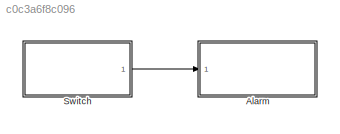
MODEL slx_c0c3a6f8c096
KIND model
CONFIG AbsTol = auto
CONFIG EnableMultiTasking = off
CONFIG FixedStep = auto
CONFIG MaxStep = auto
CONFIG MinStep = auto
CONFIG RelTol = 1e-3
CONFIG SampleTimeConstraint = Unconstrained
CONFIG Solver = FixedStepDiscrete
CONFIG SolverName = FixedStepDiscrete
CONFIG StartTime = 0.0
CONFIG StopTime = 10.0
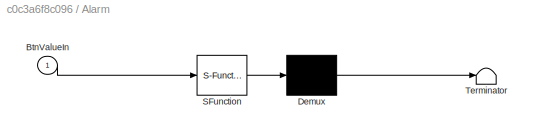
BLOCK [SubSystem] Alarm
  BlockKeywords = __PRM__SERIALIZED__DATA__:Stateflow Chart,Stateflow Diagram
  ErrorFcn = Stateflow.Translate.translate
  PermitHierarchicalResolution = ExplicitOnly
  Ports = [1]
  RequestExecContextInheritance = off
  SFBlockType = Chart
  TreatAsAtomicUnit = on
BLOCK [Demux] Alarm/ Demux 
  Outputs = 1
  Ports = [1, 1]
BLOCK [S-Function] Alarm/ SFunction 
  EnableBusSupport = on
  FunctionName = sf_sfun
  PortCounts = [1 1]
  Ports = [1, 1]
  SFcnIsStateOwnerBlock = off
  SFunctionDeploymentMode = off
  Tag = Stateflow S-Function Alarm_Model 1
BLOCK [Terminator] Alarm/ Terminator 
BLOCK [Inport] Alarm/BtnValueIn
  IconDisplay = Port number
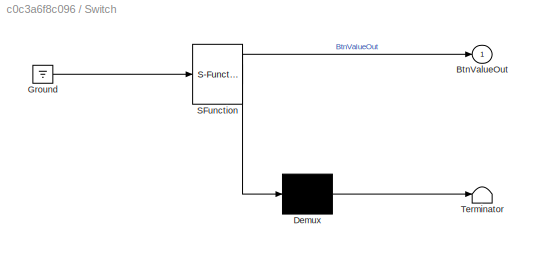
BLOCK [SubSystem] Switch
  BlockKeywords = __PRM__SERIALIZED__DATA__:Stateflow Chart,Stateflow Diagram
  ErrorFcn = Stateflow.Translate.translate
  PermitHierarchicalResolution = ExplicitOnly
  Ports = [0, 1]
  RequestExecContextInheritance = off
  SFBlockType = Chart
  TreatAsAtomicUnit = on
BLOCK [Demux] Switch/ Demux 
  Outputs = 1
  Ports = [1, 1]
BLOCK [Ground] Switch/ Ground 
BLOCK [S-Function] Switch/ SFunction 
  EnableBusSupport = on
  FunctionName = sf_sfun
  PortCounts = [1 2]
  Ports = [1, 2]
  SFcnIsStateOwnerBlock = off
  SFunctionDeploymentMode = off
  Tag = Stateflow S-Function Alarm_Model 3
BLOCK [Terminator] Switch/ Terminator 
BLOCK [Outport] Switch/BtnValueOut
  IconDisplay = Port number
LINE Switch:1 -> Alarm:1
CHART Alarm states=0 transitions=2
CHART Switch states=0 transitions=2
